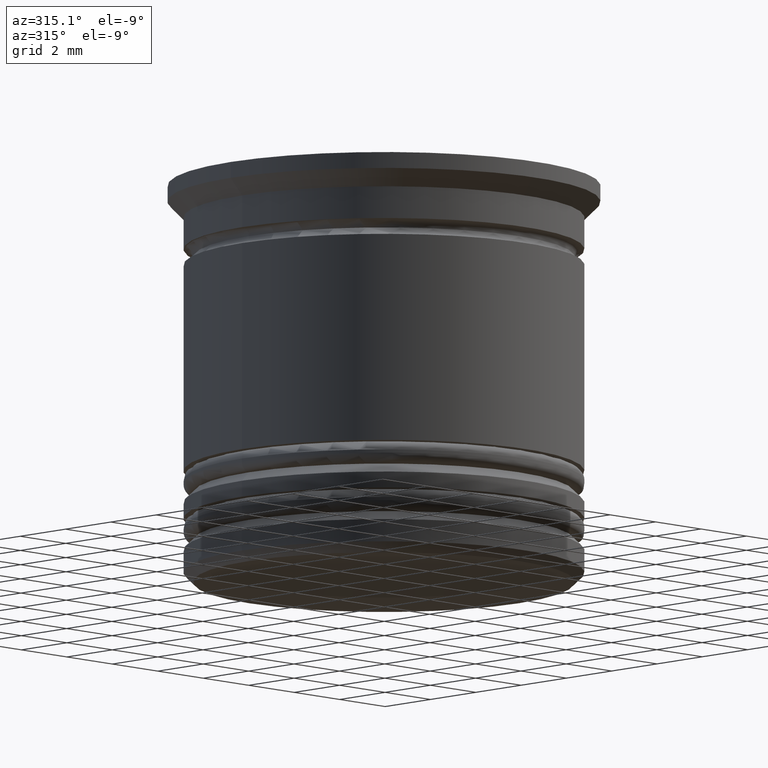
[diagram: clean part render]
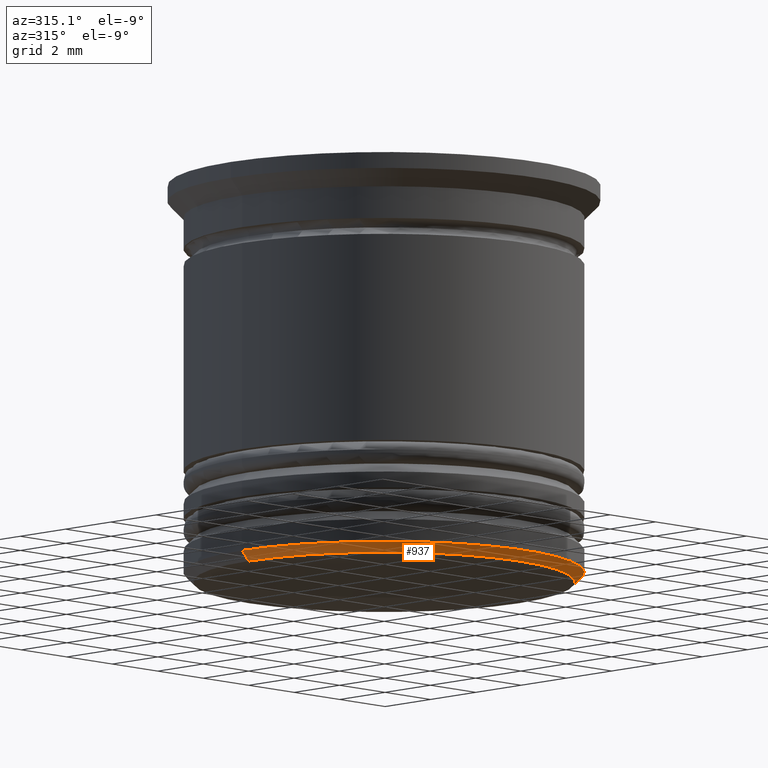
[diagram: same view with one face highlighted and labeled with its STEP entity id]
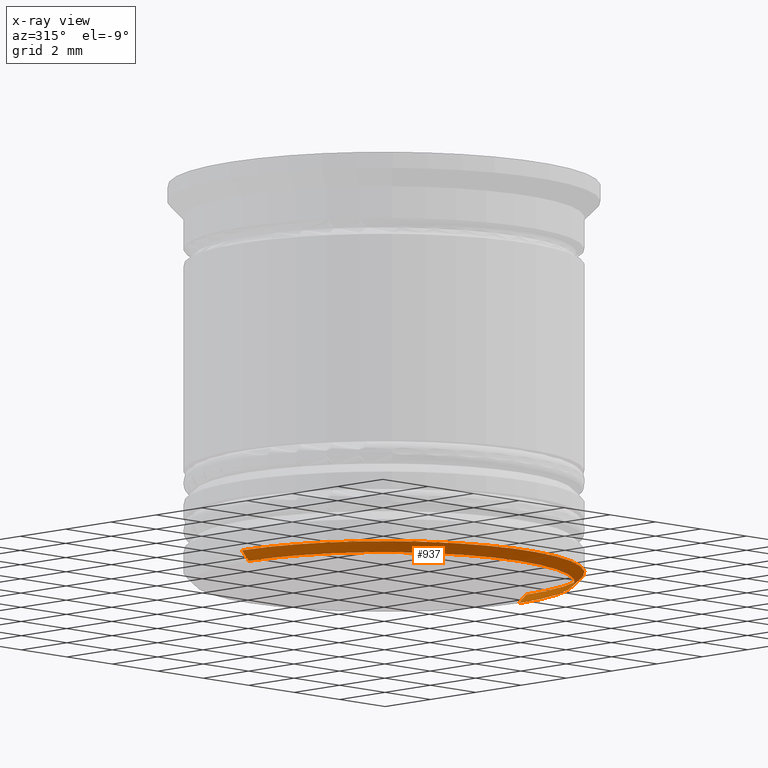
[diagram: x-ray of the same camera — body ghosted, the highlighted face saturated]
A machine part, auxiliary view. The second image highlights one B-rep face of the part: STEP entity #937.
The next image is the same camera in x-ray: the body ghosted, the highlighted face saturated — about 0% of this face is hidden behind the body in this view.
In plain terms, the highlighted conical surface has half-angle 45 deg.
Its self-contained STEP definition (entity closure, byte-faithful):
#52 = EDGE_CURVE ( 'NONE', #637, #1754, #1174, .T. ) ;
#88 = EDGE_CURVE ( 'NONE', #1610, #1727, #140, .T. ) ;
#140 = LINE ( 'NONE', #1510, #1464 ) ;
#162 = ORIENTED_EDGE ( 'NONE', *, *, #1811, .F. ) ;
#211 = CIRCLE ( 'NONE', #656, 5.950000000000001954 ) ;
#452 = CIRCLE ( 'NONE', #1308, 6.250000000000000000 ) ;
#566 = DIRECTION ( 'NONE',  ( 0.000000000000000000, 0.000000000000000000, -1.000000000000000000 ) ) ;
#637 = VERTEX_POINT ( 'NONE', #1166 ) ;
#656 = AXIS2_PLACEMENT_3D ( 'NONE', #1953, #566, #1963 ) ;
#693 = DIRECTION ( 'NONE',  ( -0.000000000000000000, -0.000000000000000000, 1.000000000000000000 ) ) ;
#702 = EDGE_CURVE ( 'NONE', #1754, #1727, #452, .T. ) ;
#783 = ORIENTED_EDGE ( 'NONE', *, *, #52, .F. ) ;
#882 = CARTESIAN_POINT ( 'NONE',  ( 6.250000000000000000, 0.000000000000000000, -12.20000000000000284 ) ) ;
#937 = ADVANCED_FACE ( 'NONE', ( #1443 ), #1178, .T. ) ;
#1038 = DIRECTION ( 'NONE',  ( -0.000000000000000000, -0.000000000000000000, 1.000000000000000000 ) ) ;
#1058 = CARTESIAN_POINT ( 'NONE',  ( 0.000000000000000000, 0.000000000000000000, -12.20000000000000284 ) ) ;
#1166 = CARTESIAN_POINT ( 'NONE',  ( -5.950000000000001954, 7.470345474798856265E-16, -12.50000000000000000 ) ) ;
#1174 = LINE ( 'NONE', #1656, #1369 ) ;
#1178 = CONICAL_SURFACE ( 'NONE', #1438, 6.250000000000000000, 0.7853981633974482790 ) ;
#1297 = ORIENTED_EDGE ( 'NONE', *, *, #88, .T. ) ;
#1308 = AXIS2_PLACEMENT_3D ( 'NONE', #1058, #1038, #1693 ) ;
#1348 = EDGE_LOOP ( 'NONE', ( #783, #162, #1297, #1541 ) ) ;
#1369 = VECTOR ( 'NONE', #1496, 1000.000000000000114 ) ;
#1438 = AXIS2_PLACEMENT_3D ( 'NONE', #1452, #693, #1921 ) ;
#1443 = FACE_OUTER_BOUND ( 'NONE', #1348, .T. ) ;
#1452 = CARTESIAN_POINT ( 'NONE',  ( 0.000000000000000000, 0.000000000000000000, -12.20000000000000284 ) ) ;
#1464 = VECTOR ( 'NONE', #1989, 1000.000000000000114 ) ;
#1496 = DIRECTION ( 'NONE',  ( -0.7071067811865474617, 8.659560562354932858E-17, 0.7071067811865474617 ) ) ;
#1510 = CARTESIAN_POINT ( 'NONE',  ( 6.250000000000000000, 0.000000000000000000, -12.20000000000000284 ) ) ;
#1541 = ORIENTED_EDGE ( 'NONE', *, *, #702, .F. ) ;
#1610 = VERTEX_POINT ( 'NONE', #1685 ) ;
#1647 = CARTESIAN_POINT ( 'NONE',  ( -6.250000000000000000, 7.654042494670957606E-16, -12.20000000000000284 ) ) ;
#1656 = CARTESIAN_POINT ( 'NONE',  ( -6.250000000000000000, 7.654042494670957606E-16, -12.20000000000000284 ) ) ;
#1685 = CARTESIAN_POINT ( 'NONE',  ( 5.950000000000001954, 0.000000000000000000, -12.50000000000000000 ) ) ;
#1693 = DIRECTION ( 'NONE',  ( -1.000000000000000000, 0.000000000000000000, 0.000000000000000000 ) ) ;
#1727 = VERTEX_POINT ( 'NONE', #882 ) ;
#1754 = VERTEX_POINT ( 'NONE', #1647 ) ;
#1811 = EDGE_CURVE ( 'NONE', #1610, #637, #211, .T. ) ;
#1921 = DIRECTION ( 'NONE',  ( 1.000000000000000000, 0.000000000000000000, 0.000000000000000000 ) ) ;
#1953 = CARTESIAN_POINT ( 'NONE',  ( 0.000000000000000000, 0.000000000000000000, -12.50000000000000000 ) ) ;
#1963 = DIRECTION ( 'NONE',  ( -1.000000000000000000, 0.000000000000000000, 0.000000000000000000 ) ) ;
#1989 = DIRECTION ( 'NONE',  ( 0.7071067811865474617, 0.000000000000000000, 0.7071067811865474617 ) ) ;